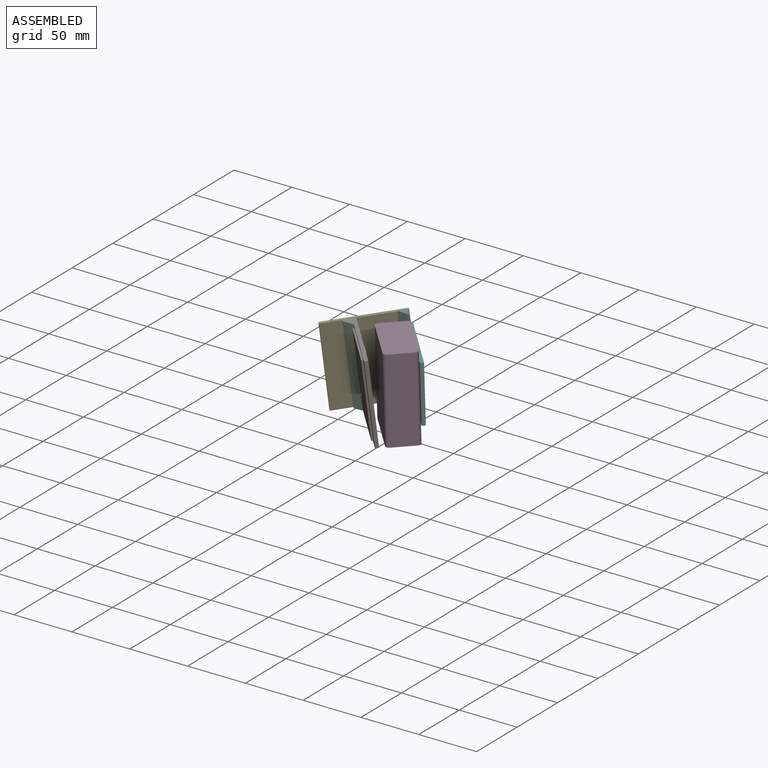
[diagram: assembled view]
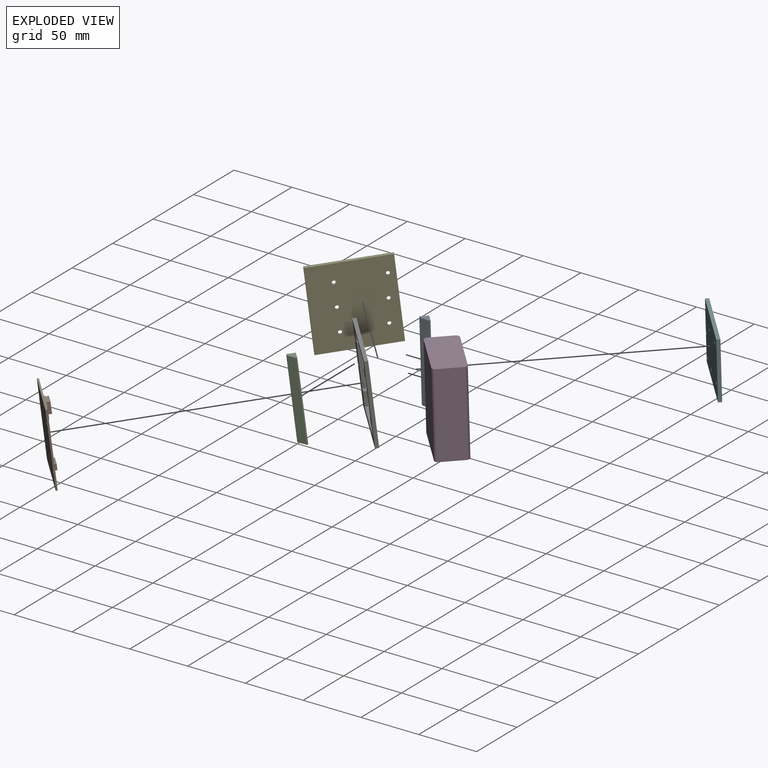
[diagram: exploded view]
GUIDED TOUR — MATED ASSEMBLY (Onshape document 43864482d6a0b5b9baaa438b, AutoMate assembly 43864482d6a0b5b9baaa438b_8aa2dad4bd054c7b0174e1f1_62e0ce11d7da94749cde2463_default)

This assembly has 7 components, labeled P0..P6 below (a component is one placed occurrence of a part; the same part can appear more than once), held together by 5 mates. A mate is a constraint between two components; its type names the relative motion it leaves free:
  FASTENED — locks the two components together rigidly (no relative motion).
Axis/direction vectors are unit vectors and 'through' points are millimeter coordinates, both in the assembly's world frame.

MATES
  1. FASTENED "Fastened 6": P3 <-> P5, direction (0.743, 0.669, 0.029) through (96.84, 160.84, -35.48) mm
  2. FASTENED "Fastened 3": P4 <-> P2, direction (0.670, -0.742, -0.033) through (30.45, 174.09, -55.89) mm
  3. FASTENED "Fastened 2": P6 <-> P2, direction (-0.740, -0.663, -0.116) through (34.80, 171.73, -35.70) mm
  4. FASTENED "Fastened 5": P0 <-> P5, direction (0.743, 0.669, 0.029) through (63.62, 197.52, -30.74) mm
  5. FASTENED "Fastened 1": P6 <-> P1, direction (-0.740, -0.663, -0.116) through (41.43, 164.21, -35.03) mm

ASSEMBLY ORDER
  1. P6 — the base component [order verified]
  2. P1 [order verified]
  3. P2 [order verified]
  4. P3 [order verified]
  5. P0 [order verified]
  6. P5 [order verified]
  7. P4 [order verified]
Order-tag legend:
  [order verified] — this step's position reverses a verified removal order: the component was checked to insert without passing through the ones already placed.

Of the 7 components, 6 carry the full construction recipe — the FeatureScript program that regenerates the part's solid from scratch; the rest are supplied as boundary geometry only.
Each toured component is shown spotlighted twice — in the assembled view, then in the exploded view, where a leader line traces a displaced component back to its assembled socket (saturated green if recipe-attached, orange if geometry-only; every other component desaturated gray) — followed by its recipe or geometry summary and the mates that hold it.
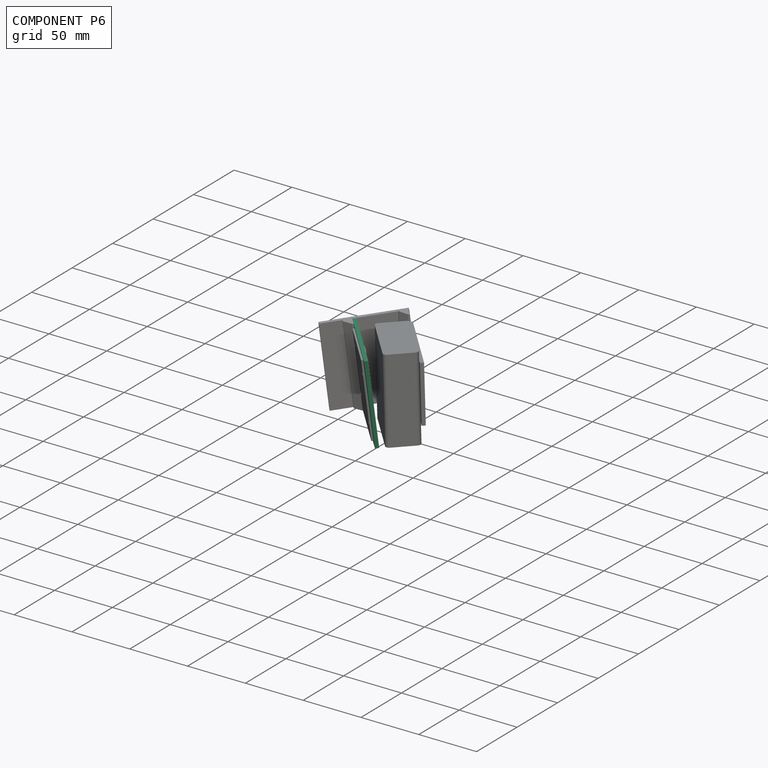
[diagram: component P6 — assembled]
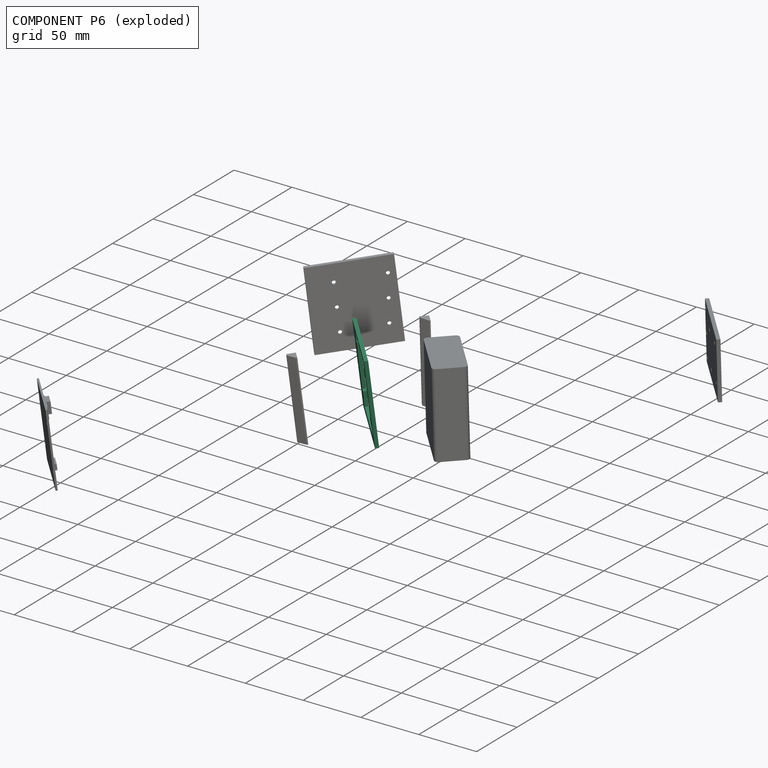
[diagram: component P6 — exploded]
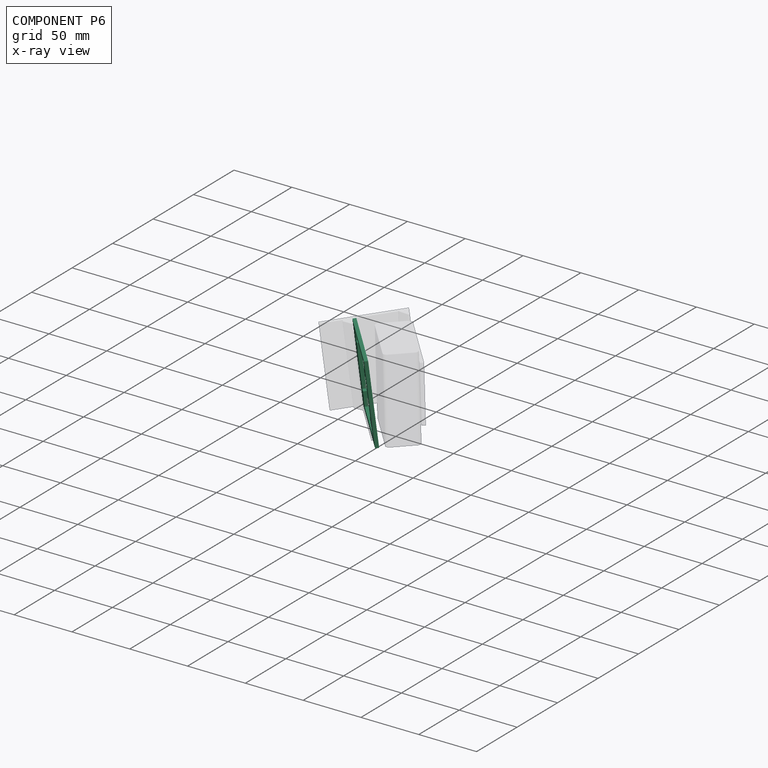
[diagram: component P6 — x-ray view]
COMPONENT P6 — recipe-attached (CADFS 00900890, mesh-verified: the recipe's output STEP matches this component's geometry to below the mesh-comparison resolution (tessellation chordal tolerance ~0.146 mm)).
Held by: FASTENED mate "Fastened 2" to P2; FASTENED mate "Fastened 1" to P1.
Construction recipe (FeatureScript — the CAD program that rebuilds this solid; sketch coordinates are in the units given by the * unit suffixes, e.g. mm):

FeatureScript 1511;
import(path : "onshape/std/geometry.fs", version : "1511.0");
import(path : "onshape/std/common.fs", version : "1511.0");
const mm = millimeter;
const VERTEX = EntityType.VERTEX;
const EDGE = EntityType.EDGE;
const FACE = EntityType.FACE;
const BODY = EntityType.BODY;
function v(x, y){return vector(x, y);}
function OD(order){return orderDisambiguation(order);}
function OSD(set){return originalSetDisambiguation(set);}
function TD(topology){return topologyDisambiguation(topology);}
function TDD(query){return trueDependencyDisambiguation(query);}
function sQuery(a, b, c) {return sketchEntityQuery(a, b, c);}

annotation { "Feature Type Name" : "Feature", "Feature Type Description" : "" }
export const myFeature = defineFeature(function(context is Context, id is Id, definition is map)
    precondition{}
    {
        {
            var Q0;
            Q0=qCreatedBy(makeId("Front.planeOp"),FACE);
            var sketch = newSketch(context, id + "F0", { "sketchPlane" : qUnion([Q0])});
            skLineSegment(sketch, "E0.bottom", {"start": v(-30.47, 26.58) * mm, "end": v(37.53, 26.58) * mm});
            skLineSegment(sketch, "E0.top", {"start": v(-30.47, -43.42) * mm, "end": v(37.53, -43.42) * mm});
            skLineSegment(sketch, "E0.left", {"start": v(-30.47, 26.58) * mm, "end": v(-30.47, -43.42) * mm});
            skLineSegment(sketch, "E0.right", {"start": v(37.53, 26.58) * mm, "end": v(37.53, -43.42) * mm});
            skLineSegment(sketch, "E1", {"start": v(-16.47, 12.58) * mm, "end": v(28.53, 12.58) * mm, "construction": true});
            skLineSegment(sketch, "E2", {"start": v(28.53, 12.58) * mm, "end": v(28.53, -26.42) * mm, "construction": true});
            skLineSegment(sketch, "E3", {"start": v(28.53, -26.42) * mm, "end": v(-16.47, -26.42) * mm, "construction": true});
            skCircle(sketch, "E4", {"center": v(-16.47, 12.58) * mm, "radius": 0.95 * mm});
            skCircle(sketch, "E5", {"center": v(28.53, 12.58) * mm, "radius": 0.95 * mm});
            skCircle(sketch, "E6", {"center": v(28.53, -26.42) * mm, "radius": 0.95 * mm});
            skCircle(sketch, "E7", {"center": v(-16.47, -26.42) * mm, "radius": 0.95 * mm});
            skLineSegment(sketch, "E8", {"start": v(-16.47, 12.58) * mm, "end": v(-16.47, 26.58) * mm, "construction": true});
            skLineSegment(sketch, "E9", {"start": v(-16.47, -26.42) * mm, "end": v(-16.47, -43.42) * mm, "construction": true});
            skLineSegment(sketch, "E10", {"start": v(-30.47, 11.58) * mm, "end": v(-26.47, 11.58) * mm, "construction": true});
            skCircle(sketch, "E11", {"center": v(-26.47, 11.58) * mm, "radius": 1.6 * mm});
            skCircle(sketch, "E12", {"center": v(-26.47, -8.42) * mm, "radius": 1.6 * mm});
            skCircle(sketch, "E13", {"center": v(-26.47, -28.42) * mm, "radius": 1.6 * mm});
            skLineSegment(sketch, "E14", {"start": v(-26.47, 11.58) * mm, "end": v(-26.47, -8.42) * mm, "construction": true});
            skLineSegment(sketch, "E15", {"start": v(-26.47, -28.42) * mm, "end": v(-26.47, -8.42) * mm, "construction": true});
            skLineSegment(sketch, "E16", {"start": v(-26.47, 11.58) * mm, "end": v(-26.47, 26.58) * mm, "construction": true});
            skLineSegment(sketch, "E17.bottom", {"start": v(-17.52, 23.1) * mm, "end": v(29.48, 23.1) * mm});
            skLineSegment(sketch, "E17.top", {"start": v(-17.52, -37.9) * mm, "end": v(29.48, -37.9) * mm});
            skLineSegment(sketch, "E18.bottom", {"start": v(-17.52, 15.56) * mm, "end": v(-13.52, 15.56) * mm});
            skLineSegment(sketch, "E18.top", {"start": v(-17.52, 9.63) * mm, "end": v(-13.52, 9.63) * mm});
            skLineSegment(sketch, "E18.right", {"start": v(-13.52, 15.56) * mm, "end": v(-13.52, 9.63) * mm});
            skLineSegment(sketch, "E19.bottom", {"start": v(-17.52, -23.47) * mm, "end": v(-13.52, -23.47) * mm});
            skLineSegment(sketch, "E19.top", {"start": v(-17.52, -29.34) * mm, "end": v(-13.52, -29.34) * mm});
            skLineSegment(sketch, "E19.right", {"start": v(-13.52, -23.47) * mm, "end": v(-13.52, -29.34) * mm});
            skLineSegment(sketch, "E20.bottom", {"start": v(29.48, -29.37) * mm, "end": v(25.58, -29.37) * mm});
            skLineSegment(sketch, "E20.top", {"start": v(29.48, -23.47) * mm, "end": v(25.58, -23.47) * mm});
            skLineSegment(sketch, "E20.right", {"start": v(25.58, -29.37) * mm, "end": v(25.58, -23.47) * mm});
            skLineSegment(sketch, "E21.bottom", {"start": v(29.48, 15.53) * mm, "end": v(25.58, 15.53) * mm});
            skLineSegment(sketch, "E21.top", {"start": v(29.48, 9.63) * mm, "end": v(25.58, 9.63) * mm});
            skLineSegment(sketch, "E21.right", {"start": v(25.58, 15.53) * mm, "end": v(25.58, 9.63) * mm});
            skLineSegment(sketch, "E22", {"start": v(29.48, -29.37) * mm, "end": v(29.48, -37.9) * mm});
            skLineSegment(sketch, "E23", {"start": v(29.48, -23.47) * mm, "end": v(29.48, 9.63) * mm});
            skLineSegment(sketch, "E24", {"start": v(29.48, 15.53) * mm, "end": v(29.48, 23.1) * mm});
            skLineSegment(sketch, "E25", {"start": v(-17.52, -29.34) * mm, "end": v(-17.52, -37.9) * mm});
            skLineSegment(sketch, "E26", {"start": v(-17.52, -23.47) * mm, "end": v(-17.52, 9.63) * mm});
            skLineSegment(sketch, "E27", {"start": v(-17.52, 23.1) * mm, "end": v(-17.52, 15.56) * mm});
            skSolve(sketch);
        }
        {
            var Q0;
            Q0 = qSketchRegion(id + "F0", true);
            var Q1;
            Q1=makeQuery(id+"F0.imprint","IMPRINT",FACE,{"disambiguationData":[TD([[makeQuery(id+"F0.imprint","IMPRINT",EDGE,{"derivedFrom":sQuery(id+"F0.wireOp",EDGE,"E4")}),-1.0]])]});
            var Q2;
            {var subQ3=sQuery(id+"F0.wireOp",EDGE,"E5");Q2=makeQuery(id+"F0.imprint","IMPRINT",FACE,{"disambiguationData":[TD([[makeQuery(id+"F0.imprint","IMPRINT",EDGE,{"derivedFrom":subQ3}),-1.0]])]});}
            var Q3;
            Q3=makeQuery(id+"F0.imprint","IMPRINT",FACE,{"disambiguationData":[TD([[makeQuery(id+"F0.imprint","IMPRINT",EDGE,{"derivedFrom":sQuery(id+"F0.wireOp",EDGE,"E7")}),-1.0]])]});
            var Q4;
            {var subQ3=sQuery(id+"F0.wireOp",EDGE,"E6");Q4=makeQuery(id+"F0.imprint","IMPRINT",FACE,{"disambiguationData":[TD([[makeQuery(id+"F0.imprint","IMPRINT",EDGE,{"derivedFrom":subQ3}),-1.0]])]});}
            extrude(context, id + "F1", {"entities" : qUnion([Q0, Q1, Q2, Q3, Q4]), "depth" : 3 * mm, "offsetDistance" : 25 * mm});
        }
    });
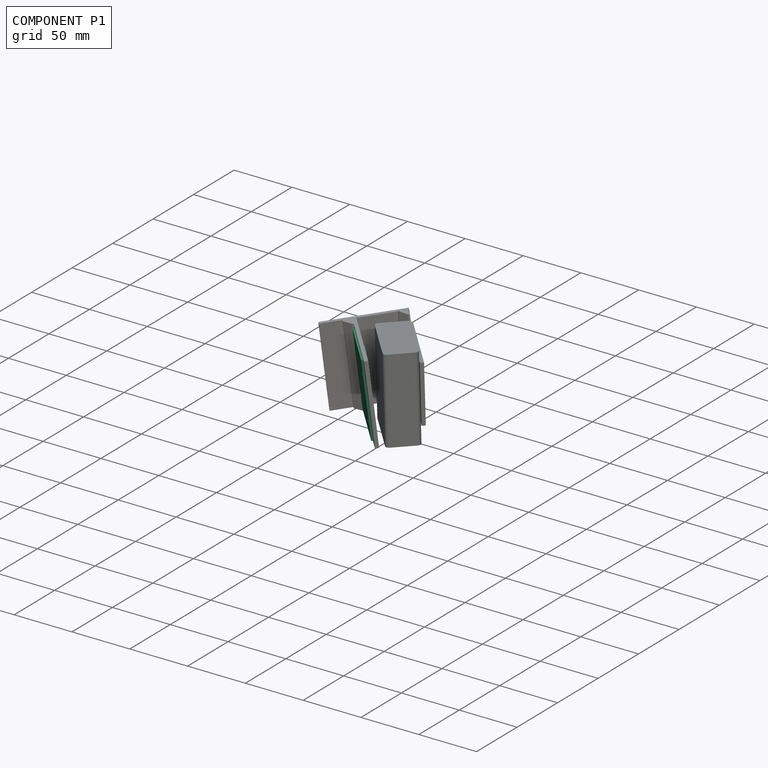
[diagram: component P1 — assembled]
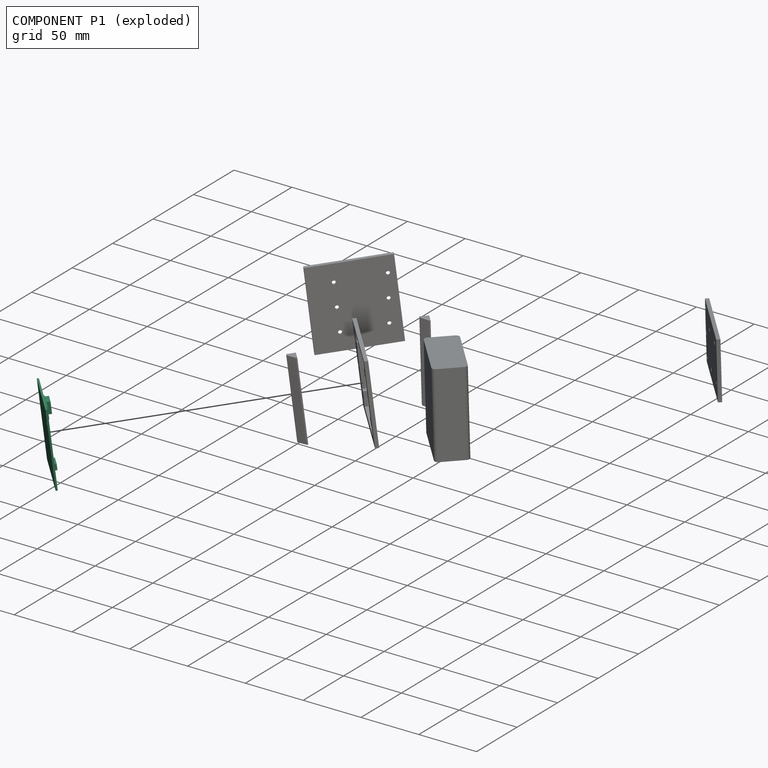
[diagram: component P1 — exploded]
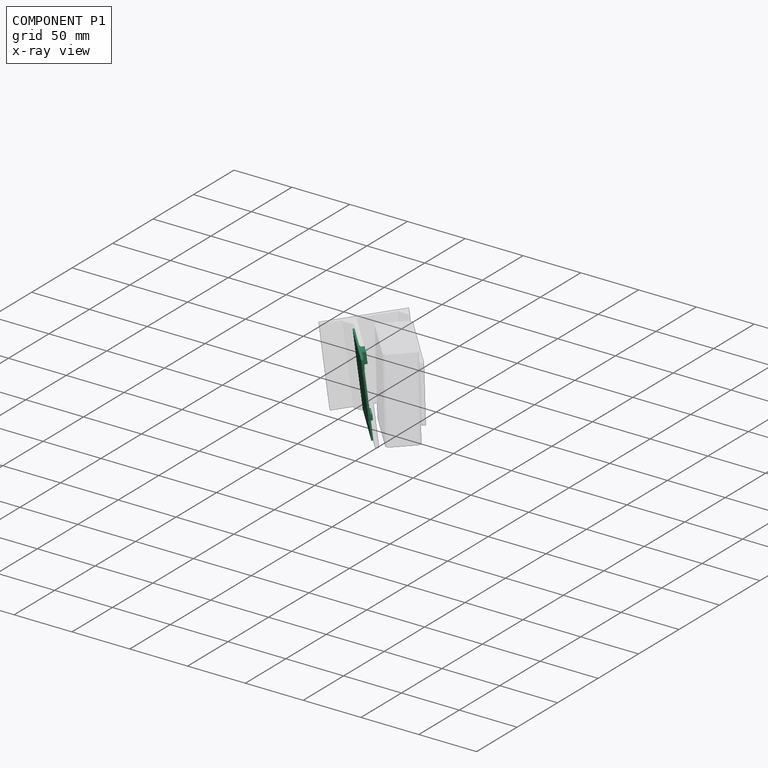
[diagram: component P1 — x-ray view]
COMPONENT P1 — recipe-attached (CADFS 00900891, mesh-verified: the recipe's output STEP matches this component's geometry to below the mesh-comparison resolution (tessellation chordal tolerance ~0.123 mm)).
Held by: FASTENED mate "Fastened 1" to P6.
Construction recipe (FeatureScript — the CAD program that rebuilds this solid; sketch coordinates are in the units given by the * unit suffixes, e.g. mm):

FeatureScript 1511;
import(path : "onshape/std/geometry.fs", version : "1511.0");
import(path : "onshape/std/common.fs", version : "1511.0");
const mm = millimeter;
const VERTEX = EntityType.VERTEX;
const EDGE = EntityType.EDGE;
const FACE = EntityType.FACE;
const BODY = EntityType.BODY;
function v(x, y){return vector(x, y);}
function OD(order){return orderDisambiguation(order);}
function OSD(set){return originalSetDisambiguation(set);}
function TD(topology){return topologyDisambiguation(topology);}
function TDD(query){return trueDependencyDisambiguation(query);}
function sQuery(a, b, c) {return sketchEntityQuery(a, b, c);}

annotation { "Feature Type Name" : "Feature", "Feature Type Description" : "" }
export const myFeature = defineFeature(function(context is Context, id is Id, definition is map)
    precondition{}
    {
        {
            var Q0;
            Q0=qCreatedBy(makeId("Top.planeOp"),FACE);
            var sketch = newSketch(context, id + "F0", { "sketchPlane" : qUnion([Q0])});
            skLineSegment(sketch, "E0.bottom", {"start": v(-23.74, -20.67) * mm, "end": v(26.26, -20.67) * mm});
            skLineSegment(sketch, "E0.top", {"start": v(-23.74, 44.33) * mm, "end": v(26.26, 44.33) * mm});
            skLineSegment(sketch, "E0.left", {"start": v(-23.74, -20.67) * mm, "end": v(-23.74, 44.33) * mm});
            skLineSegment(sketch, "E0.right", {"start": v(26.26, -20.67) * mm, "end": v(26.26, 44.33) * mm});
            skLineSegment(sketch, "E1", {"start": v(23.76, 44.33) * mm, "end": v(23.76, 32.33) * mm, "construction": true});
            skCircle(sketch, "E2", {"center": v(23.76, 32.33) * mm, "radius": 1.5 * mm});
            skLineSegment(sketch, "E3", {"start": v(23.76, 32.33) * mm, "end": v(26.26, 32.33) * mm, "construction": true});
            skLineSegment(sketch, "E4.MirrorCS", {"start": v(-21.24, 44.33) * mm, "end": v(-21.24, 32.33) * mm, "construction": true});
            skCircle(sketch, "E5.MirrorC", {"center": v(-21.24, 32.33) * mm, "radius": 1.5 * mm});
            skLineSegment(sketch, "E6.MirrorCS", {"start": v(-21.24, 32.33) * mm, "end": v(-23.74, 32.33) * mm, "construction": true});
            skLineSegment(sketch, "E7", {"start": v(23.76, -20.67) * mm, "end": v(23.76, -6.67) * mm, "construction": true});
            skLineSegment(sketch, "E8", {"start": v(23.76, -6.67) * mm, "end": v(26.26, -6.67) * mm, "construction": true});
            skCircle(sketch, "E9", {"center": v(23.76, -6.67) * mm, "radius": 1.5 * mm});
            skLineSegment(sketch, "E10", {"start": v(1.26, -20.67) * mm, "end": v(1.26, 44.33) * mm, "construction": true});
            skLineSegment(sketch, "E11.MirrorCS", {"start": v(-21.24, -6.67) * mm, "end": v(-23.74, -6.67) * mm, "construction": true});
            skCircle(sketch, "E12.MirrorC", {"center": v(-21.24, -6.67) * mm, "radius": 1.5 * mm});
            skLineSegment(sketch, "E13.MirrorCS", {"start": v(-21.24, -20.67) * mm, "end": v(-21.24, -6.67) * mm, "construction": true});
            skSolve(sketch);
        }
        {
            var Q0;
            Q0=makeQuery(id+"F0.imprint","IMPRINT",FACE,{"disambiguationData":[TD([[makeQuery(id+"F0.imprint","IMPRINT",EDGE,{"derivedFrom":sQuery(id+"F0.wireOp",EDGE,"E0.bottom")}),1.0]])]});
            extrude(context, id + "F1", {"entities" : qUnion([Q0]), "depth" : 1.5 * mm, "offsetDistance" : 25 * mm});
        }
        {
            var Q0;
            Q0=makeQuery(id+"F1.opExtrude","CAP_FACE",FACE,{"disambiguationData":[OSD([sQuery(id+"F0.wireOp",EDGE,"E0.bottom"),sQuery(id+"F0.wireOp",EDGE,"E0.top"),sQuery(id+"F0.wireOp",EDGE,"E0.left"),sQuery(id+"F0.wireOp",EDGE,"E0.right"),sQuery(id+"F0.wireOp",EDGE,"E2"),sQuery(id+"F0.wireOp",EDGE,"E5.MirrorC"),sQuery(id+"F0.wireOp",EDGE,"E9"),sQuery(id+"F0.wireOp",EDGE,"E12.MirrorC")])],"isStart":false});
            var sketch = newSketch(context, id + "F2", { "sketchPlane" : qUnion([Q0])});
            skLineSegment(sketch, "E14.bottom", {"start": v(20.26, 33.33) * mm, "end": v(1.26, 33.33) * mm});
            skLineSegment(sketch, "E14.top", {"start": v(20.26, 23.33) * mm, "end": v(1.26, 23.33) * mm});
            skLineSegment(sketch, "E14.left", {"start": v(20.26, 33.33) * mm, "end": v(20.26, 23.33) * mm});
            skLineSegment(sketch, "E14.right", {"start": v(1.26, 33.33) * mm, "end": v(1.26, 23.33) * mm});
            skLineSegment(sketch, "E15.bottom", {"start": v(9.26, 33.33) * mm, "end": v(18.26, 33.33) * mm});
            skLineSegment(sketch, "E15.top", {"start": v(9.26, 23.33) * mm, "end": v(18.26, 23.33) * mm});
            skLineSegment(sketch, "E15.left", {"start": v(9.26, 33.33) * mm, "end": v(9.26, 23.33) * mm});
            skLineSegment(sketch, "E15.right", {"start": v(18.26, 33.33) * mm, "end": v(18.26, 23.33) * mm});
            skLineSegment(sketch, "E16.bottom", {"start": v(-17.74, -2.67) * mm, "end": v(-7.74, -2.67) * mm});
            skLineSegment(sketch, "E16.top", {"start": v(-17.74, -7.67) * mm, "end": v(-7.74, -7.67) * mm});
            skLineSegment(sketch, "E16.left", {"start": v(-17.74, -2.67) * mm, "end": v(-17.74, -7.67) * mm});
            skLineSegment(sketch, "E16.right", {"start": v(-7.74, -2.67) * mm, "end": v(-7.74, -7.67) * mm});
            skSolve(sketch);
        }
        {
            var Q0;
            Q0=makeQuery(id+"F2.imprint","IMPRINT",FACE,{"disambiguationData":[TD([[makeQuery(id+"F2.imprint","IMPRINT",EDGE,{"derivedFrom":sQuery(id+"F2.wireOp",EDGE,"E16.bottom")}),-1.0]])]});
            extrude(context, id + "F3", {"entities" : qUnion([Q0]), "operationType" : NewBodyOperationType.ADD, "depth" : 2 * mm, "offsetDistance" : 25 * mm});
        }
        {
            var Q0;
            {var subQ2=sQuery(id+"F2.wireOp",EDGE,"E15.left");Q0=makeQuery(id+"F2.imprint","IMPRINT",FACE,{"disambiguationData":[TD([[makeQuery(id+"F2.imprint","IMPRINT",EDGE,{"derivedFrom":subQ2}),1.0]])]});}
            extrude(context, id + "F4", {"entities" : qUnion([Q0]), "operationType" : NewBodyOperationType.ADD, "depth" : 5 * mm, "offsetDistance" : 25 * mm});
        }
        {
            var Q0;
            {var subQ2=sQuery(id+"F2.wireOp",EDGE,"E14.left");Q0=makeQuery(id+"F2.imprint","IMPRINT",FACE,{"disambiguationData":[TD([[makeQuery(id+"F2.imprint","IMPRINT",EDGE,{"derivedFrom":subQ2}),-1.0]])]});}
            var Q1;
            {var subQ0=sQuery(id+"F2.wireOp",EDGE,"E14.right");Q1=makeQuery(id+"F2.imprint","IMPRINT",FACE,{"disambiguationData":[TD([[makeQuery(id+"F2.imprint","IMPRINT",EDGE,{"derivedFrom":subQ0}),1.0]])]});}
            extrude(context, id + "F5", {"entities" : qUnion([Q0, Q1]), "operationType" : NewBodyOperationType.ADD, "depth" : 2 * mm, "offsetDistance" : 25 * mm});
        }
    });
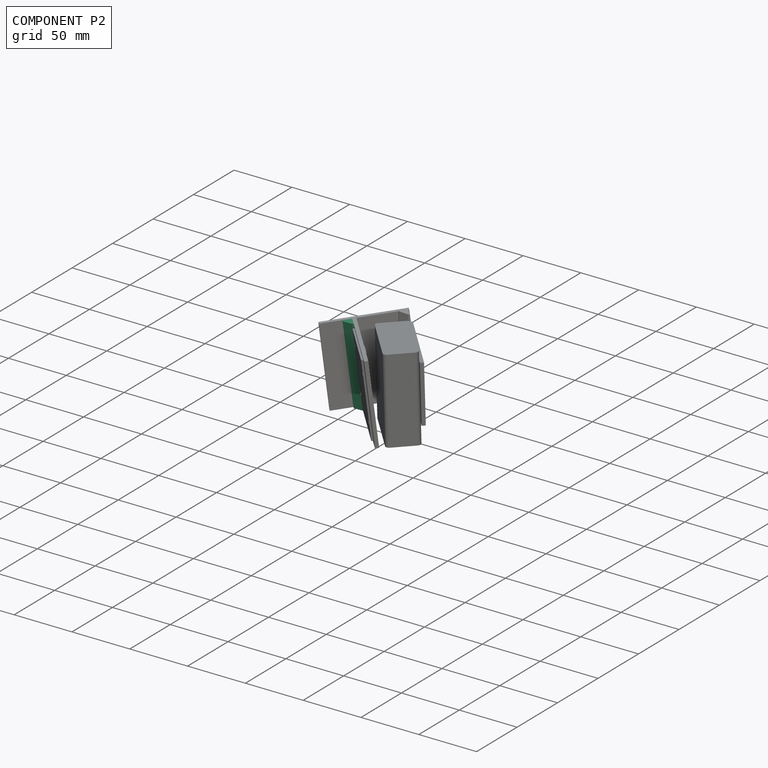
[diagram: component P2 — assembled]
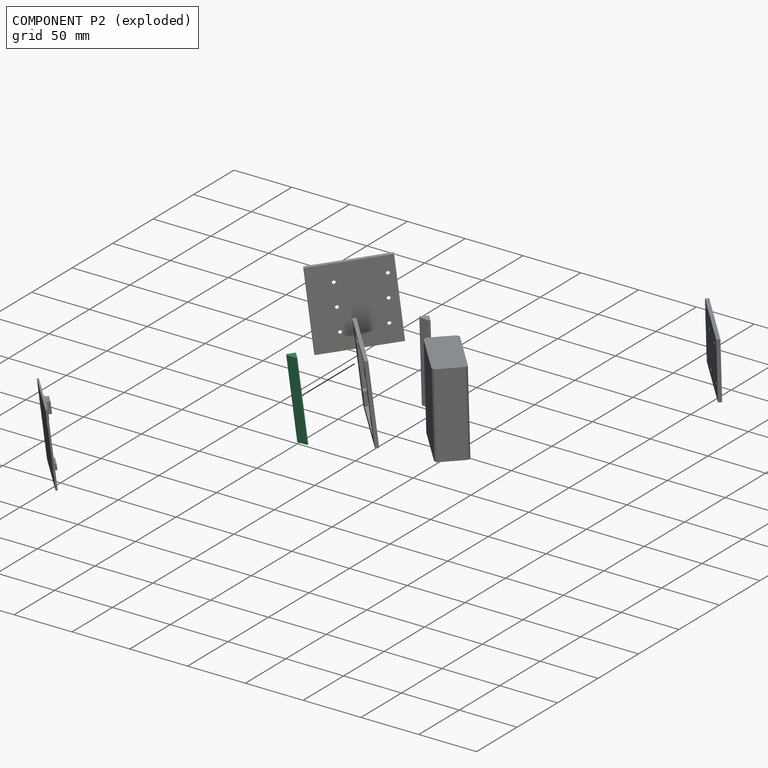
[diagram: component P2 — exploded]
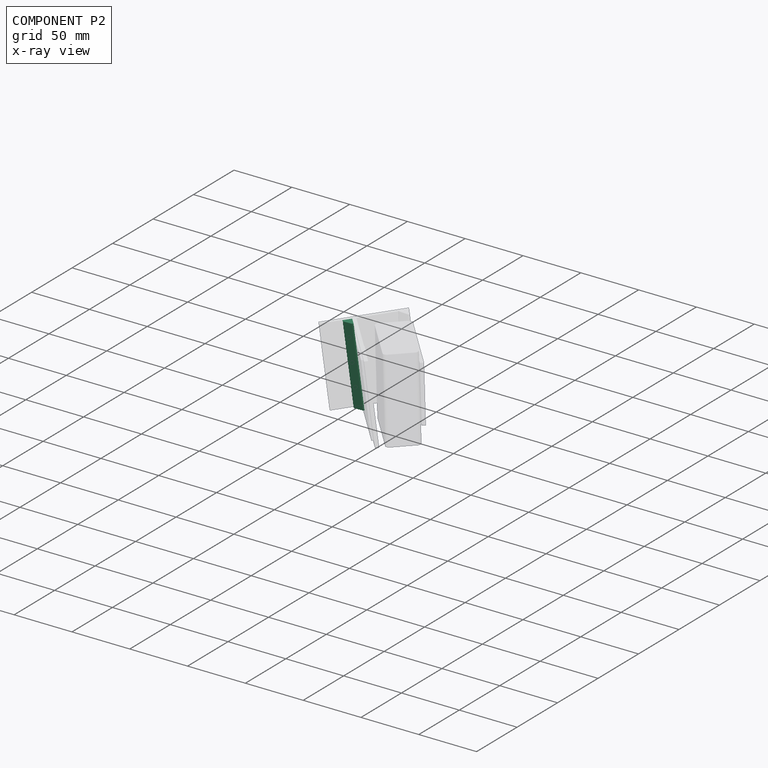
[diagram: component P2 — x-ray view]
COMPONENT P2 — same part as P0 (CADFS 00846134); its construction recipe is shown at P0.
Held by: FASTENED mate "Fastened 3" to P4; FASTENED mate "Fastened 2" to P6.
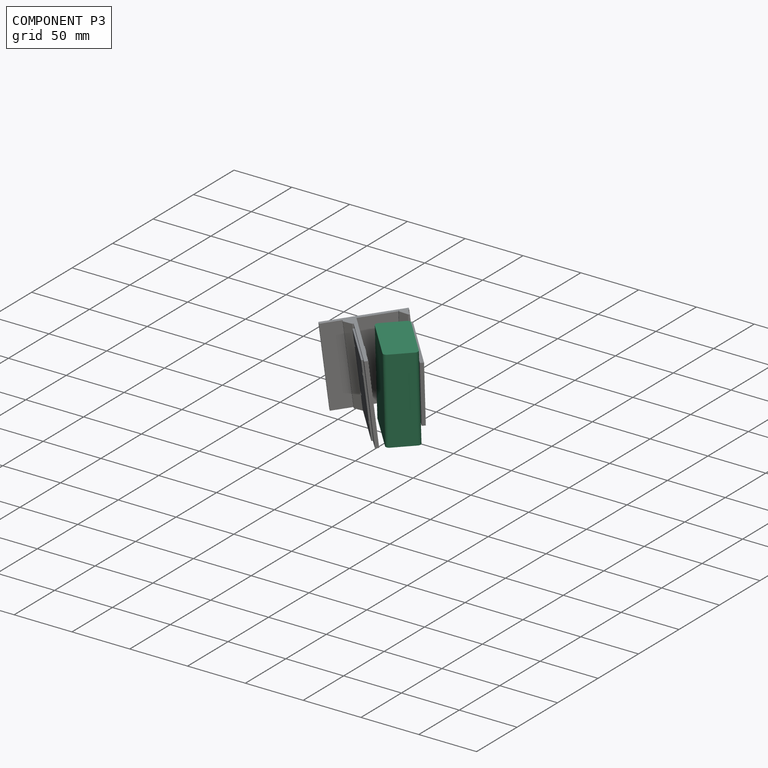
[diagram: component P3 — assembled]
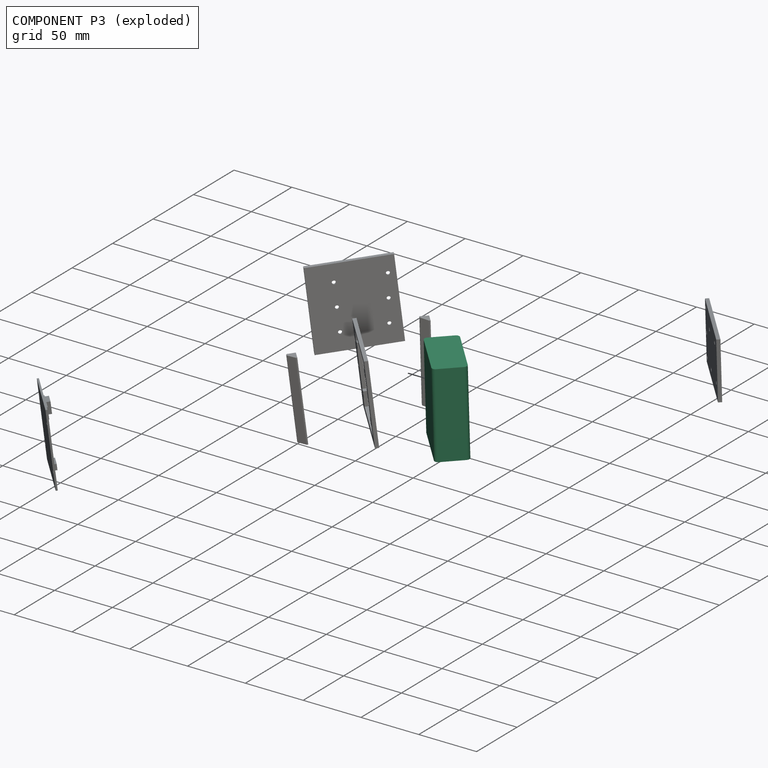
[diagram: component P3 — exploded]
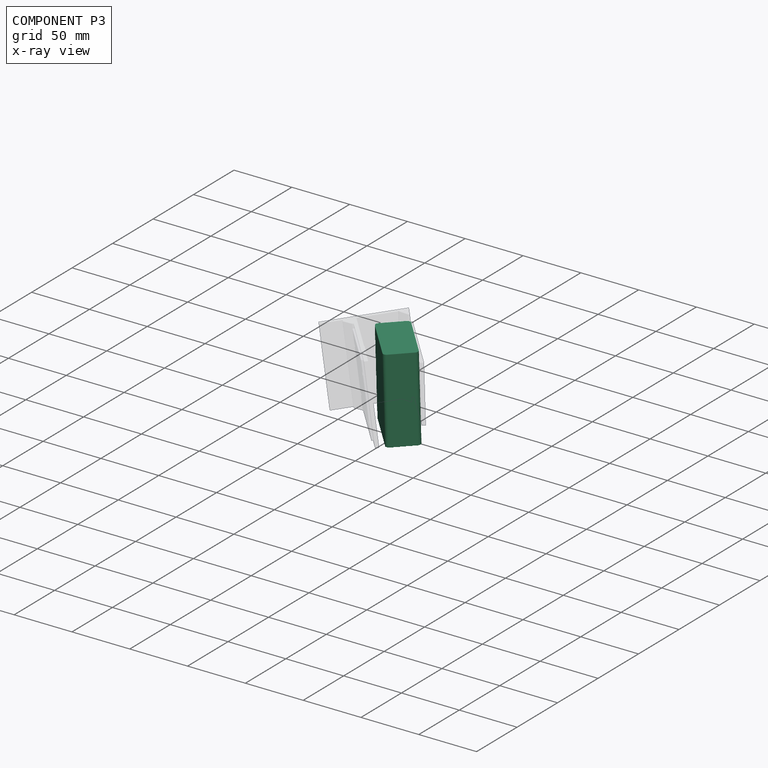
[diagram: component P3 — x-ray view]
COMPONENT P3 — recipe-attached (CADFS 00846248, mesh-verified: the recipe's output STEP matches this component's geometry to below the mesh-comparison resolution (tessellation chordal tolerance ~0.14 mm)).
Held by: FASTENED mate "Fastened 6" to P5.
Construction recipe (FeatureScript — the CAD program that rebuilds this solid; sketch coordinates are in the units given by the * unit suffixes, e.g. mm):

FeatureScript 1511;
import(path : "onshape/std/geometry.fs", version : "1511.0");
import(path : "onshape/std/common.fs", version : "1511.0");
const mm = millimeter;
const VERTEX = EntityType.VERTEX;
const EDGE = EntityType.EDGE;
const FACE = EntityType.FACE;
const BODY = EntityType.BODY;
function v(x, y){return vector(x, y);}
function OD(order){return orderDisambiguation(order);}
function OSD(set){return originalSetDisambiguation(set);}
function TD(topology){return topologyDisambiguation(topology);}
function TDD(query){return trueDependencyDisambiguation(query);}
function sQuery(a, b, c) {return sketchEntityQuery(a, b, c);}

annotation { "Feature Type Name" : "Feature", "Feature Type Description" : "" }
export const myFeature = defineFeature(function(context is Context, id is Id, definition is map)
    precondition{}
    {
        {
            var Q0;
            Q0=qCreatedBy(makeId("Top.planeOp"),FACE);
            var sketch = newSketch(context, id + "F0", { "sketchPlane" : qUnion([Q0])});
            skLineSegment(sketch, "E0.bottom", {"start": v(-22.9, 37.62) * mm, "end": v(27.1, 37.62) * mm});
            skLineSegment(sketch, "E0.top", {"start": v(-22.9, -36.38) * mm, "end": v(27.1, -36.38) * mm});
            skLineSegment(sketch, "E0.left", {"start": v(-22.9, 37.62) * mm, "end": v(-22.9, -36.38) * mm});
            skLineSegment(sketch, "E0.right", {"start": v(27.1, 37.62) * mm, "end": v(27.1, -36.38) * mm});
            skSolve(sketch);
        }
        {
            var Q0;
            Q0 = qSketchRegion(id + "F0", true);
            extrude(context, id + "F1", {"entities" : qUnion([Q0]), "depth" : 26 * mm, "offsetDistance" : 25 * mm});
        }
        {
            var Q0;
            Q0=makeQuery(id+"F1.opExtrude","SWEPT_FACE",FACE,{"disambiguationData":[OSD([sQuery(id+"F0.wireOp",EDGE,"E0.bottom")])]});
            var sketch = newSketch(context, id + "F2", { "sketchPlane" : qUnion([Q0])});
            skLineSegment(sketch, "E1.bottom", {"start": v(-22.05, 20.89) * mm, "end": v(17.95, 20.89) * mm});
            skLineSegment(sketch, "E1.top", {"start": v(-22.05, 5.89) * mm, "end": v(17.95, 5.89) * mm});
            skLineSegment(sketch, "E1.left", {"start": v(-22.05, 20.89) * mm, "end": v(-22.05, 5.89) * mm});
            skLineSegment(sketch, "E1.right", {"start": v(17.95, 20.89) * mm, "end": v(17.95, 5.89) * mm});
            skSolve(sketch);
        }
        {
            var Q0;
            Q0 = qSketchRegion(id + "F2", true);
            extrude(context, id + "F3", {"entities" : qUnion([Q0]), "operationType" : NewBodyOperationType.REMOVE, "oppositeDirection" : true, "depth" : 4.5 * mm, "offsetDistance" : 25 * mm});
        }
        {
            var Q0;
            Q0=makeQuery(id+"F1.opExtrude","CAP_FACE",FACE,{"disambiguationData":[OSD([sQuery(id+"F0.wireOp",EDGE,"E0.bottom"),sQuery(id+"F0.wireOp",EDGE,"E0.top"),sQuery(id+"F0.wireOp",EDGE,"E0.left"),sQuery(id+"F0.wireOp",EDGE,"E0.right")])],"isStart":true});
            var sketch = newSketch(context, id + "F4", { "sketchPlane" : qUnion([Q0])});
            skLineSegment(sketch, "E2", {"start": v(18.1, -37.62) * mm, "end": v(18.1, -9.62) * mm});
            skLineSegment(sketch, "E3", {"start": v(18.1, -9.62) * mm, "end": v(18.1, 20.38) * mm});
            skLineSegment(sketch, "E4", {"start": v(18.1, 20.38) * mm, "end": v(-12.9, 20.38) * mm});
            skCircle(sketch, "E5", {"center": v(18.1, 20.38) * mm, "radius": 1.5 * mm});
            skCircle(sketch, "E6", {"center": v(-12.9, 20.38) * mm, "radius": 1.5 * mm});
            skCircle(sketch, "E7", {"center": v(18.1, -9.62) * mm, "radius": 1.5 * mm});
            skCircle(sketch, "E8", {"center": v(18.1, -9.62) * mm, "radius": 2.25 * mm});
            skCircle(sketch, "E9", {"center": v(18.1, 20.38) * mm, "radius": 2.25 * mm});
            skCircle(sketch, "E10", {"center": v(-12.9, 20.38) * mm, "radius": 2.25 * mm});
            skLineSegment(sketch, "E11", {"start": v(-12.9, 20.38) * mm, "end": v(-12.9, 8.38) * mm});
            skLineSegment(sketch, "E12.bottom", {"start": v(-12.9, 8.38) * mm, "end": v(-12.4, 8.38) * mm});
            skLineSegment(sketch, "E12.top", {"start": v(-12.9, 6.38) * mm, "end": v(-12.4, 6.38) * mm});
            skLineSegment(sketch, "E12.left", {"start": v(-12.9, 8.38) * mm, "end": v(-12.9, 6.38) * mm});
            skLineSegment(sketch, "E12.right", {"start": v(-12.4, 8.38) * mm, "end": v(-12.4, 6.38) * mm});
            skSolve(sketch);
        }
        {
            var Q0;
            Q0=makeQuery(id+"F1.opExtrude","CAP_EDGE",EDGE,{"disambiguationData":[OSD([sQuery(id+"F0.wireOp",EDGE,"E0.right")])],"isStart":true});
            var Q1;
            Q1=makeQuery(id+"F1.opExtrude","CAP_EDGE",EDGE,{"disambiguationData":[OSD([sQuery(id+"F0.wireOp",EDGE,"E0.right")])],"isStart":false});
            var Q2;
            Q2=makeQuery(id+"F1.opExtrude","CAP_EDGE",EDGE,{"disambiguationData":[OSD([sQuery(id+"F0.wireOp",EDGE,"E0.left")])],"isStart":true});
            var Q3;
            Q3=makeQuery(id+"F1.opExtrude","CAP_EDGE",EDGE,{"disambiguationData":[OSD([sQuery(id+"F0.wireOp",EDGE,"E0.left")])],"isStart":false});
            fillet(context, id + "F5", {"entities" : qUnion([Q0, Q1, Q2, Q3]), "radius" : 3 * mm, "tangentPropagation" : true, "allowEdgeOverflow" : false});
        }
        {
            var Q0;
            {var subQ0=sQuery(id+"F4.wireOp",EDGE,"E4");var subQ1=sQuery(id+"F4.wireOp",EDGE,"E3");var subQ2=makeQuery(id+"F4.imprint","INTERSECT",VERTEX,{"derivedFrom":[subQ1,subQ0]});Q0=makeQuery(id+"F4.imprint","IMPRINT",FACE,{"disambiguationData":[TD([[makeQuery(id+"F4.imprint","IMPRINT",EDGE,{"disambiguationData":[TD([[subQ2,1.0]])],"derivedFrom":subQ1}),-1.0]])]});}
            var Q1;
            {var subQ0=sQuery(id+"F4.wireOp",EDGE,"E4");var subQ1=sQuery(id+"F4.wireOp",EDGE,"E3");var subQ2=makeQuery(id+"F4.imprint","INTERSECT",VERTEX,{"derivedFrom":[subQ1,subQ0]});Q1=makeQuery(id+"F4.imprint","IMPRINT",FACE,{"disambiguationData":[TD([[makeQuery(id+"F4.imprint","IMPRINT",EDGE,{"disambiguationData":[TD([[subQ2,1.0]])],"derivedFrom":subQ1}),1.0]])]});}
            var Q2;
            Q2=makeQuery(id+"F4.imprint","IMPRINT",FACE,{"disambiguationData":[TD([[makeQuery(id+"F4.imprint","IMPRINT",EDGE,{"derivedFrom":sQuery(id+"F4.wireOp",EDGE,"E6")}),1.0]])]});
            var Q3;
            {var subQ0=sQuery(id+"F4.wireOp",EDGE,"E3");var subQ1=sQuery(id+"F4.wireOp",EDGE,"E2");var subQ2=makeQuery(id+"F4.imprint","INTERSECT",VERTEX,{"derivedFrom":[subQ1,subQ0]});Q3=makeQuery(id+"F4.imprint","IMPRINT",FACE,{"disambiguationData":[TD([[makeQuery(id+"F4.imprint","IMPRINT",EDGE,{"disambiguationData":[TD([[subQ2,1.0]])],"derivedFrom":subQ1}),1.0]])]});}
            var Q4;
            {var subQ0=sQuery(id+"F4.wireOp",EDGE,"E3");var subQ1=sQuery(id+"F4.wireOp",EDGE,"E2");var subQ2=makeQuery(id+"F4.imprint","INTERSECT",VERTEX,{"derivedFrom":[subQ1,subQ0]});Q4=makeQuery(id+"F4.imprint","IMPRINT",FACE,{"disambiguationData":[TD([[makeQuery(id+"F4.imprint","IMPRINT",EDGE,{"disambiguationData":[TD([[subQ2,1.0]])],"derivedFrom":subQ1}),-1.0]])]});}
            extrude(context, id + "F6", {"entities" : qUnion([Q0, Q1, Q2, Q3, Q4]), "operationType" : NewBodyOperationType.REMOVE, "oppositeDirection" : true, "depth" : 4 * mm, "offsetDistance" : 25 * mm});
        }
        {
            var Q0;
            Q0=makeQuery(id+"F4.imprint","IMPRINT",FACE,{"disambiguationData":[TD([[makeQuery(id+"F4.imprint","IMPRINT",EDGE,{"derivedFrom":sQuery(id+"F4.wireOp",EDGE,"E12.bottom")}),-1.0]])]});
            extrude(context, id + "F7", {"entities" : qUnion([Q0]), "operationType" : NewBodyOperationType.REMOVE, "oppositeDirection" : true, "depth" : 0.2 * mm, "offsetDistance" : 25 * mm});
        }
    });
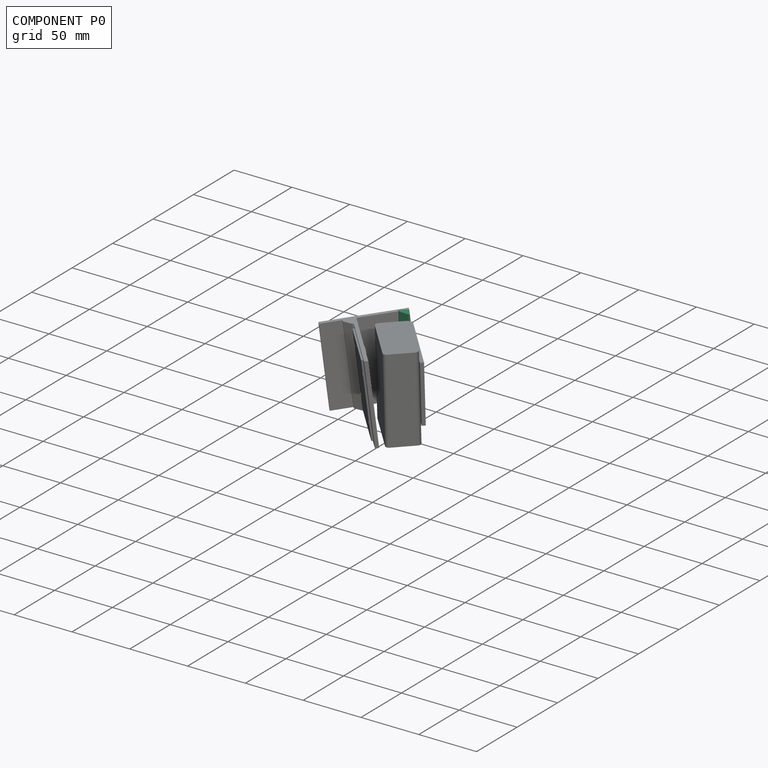
[diagram: component P0 — assembled]
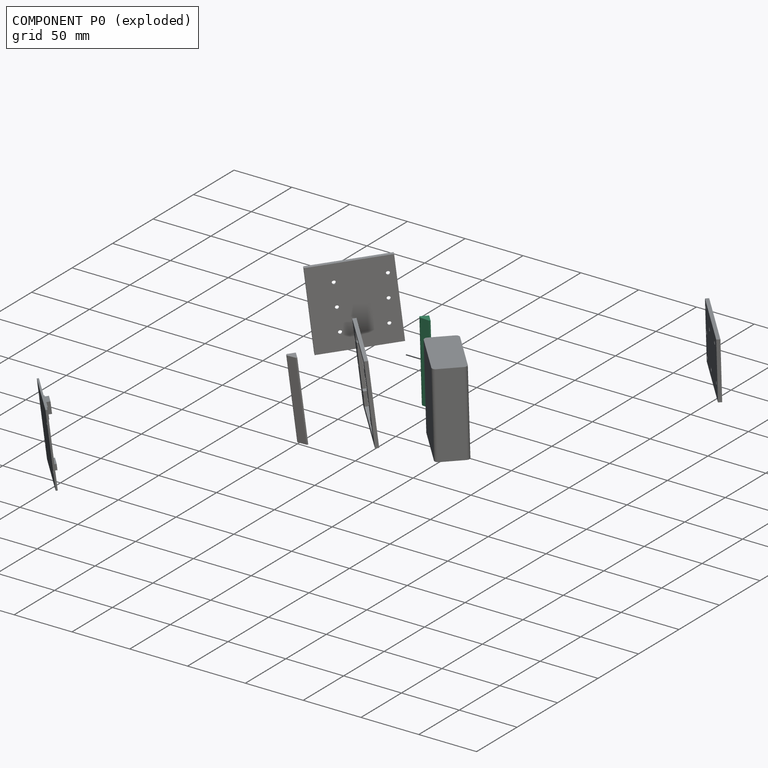
[diagram: component P0 — exploded]
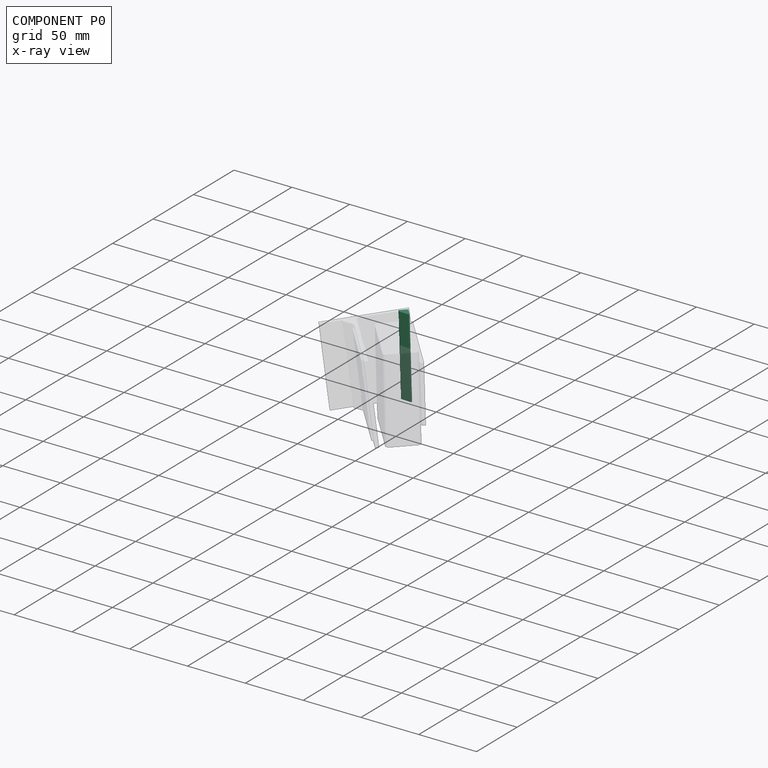
[diagram: component P0 — x-ray view]
COMPONENT P0 — recipe-attached (CADFS 00846134, mesh-verified: the recipe's output STEP matches this component's geometry to below the mesh-comparison resolution (tessellation chordal tolerance ~0.106 mm)).
Held by: FASTENED mate "Fastened 5" to P5.
Construction recipe (FeatureScript — the CAD program that rebuilds this solid; sketch coordinates are in the units given by the * unit suffixes, e.g. mm):

FeatureScript 1540;
import(path : "onshape/std/geometry.fs", version : "1540.0");
import(path : "onshape/std/common.fs", version : "1540.0");
const mm = millimeter;
const VERTEX = EntityType.VERTEX;
const EDGE = EntityType.EDGE;
const FACE = EntityType.FACE;
const BODY = EntityType.BODY;
function v(x, y){return vector(x, y);}
function OD(order){return orderDisambiguation(order);}
function OSD(set){return originalSetDisambiguation(set);}
function TD(topology){return topologyDisambiguation(topology);}
function TDD(query){return trueDependencyDisambiguation(query);}
function sQuery(a, b, c) {return sketchEntityQuery(a, b, c);}

annotation { "Feature Type Name" : "Feature", "Feature Type Description" : "" }
export const myFeature = defineFeature(function(context is Context, id is Id, definition is map)
    precondition{}
    {
        {
            var Q0;
            Q0=qCreatedBy(makeId("Top.planeOp"),FACE);
            var sketch = newSketch(context, id + "F0", { "sketchPlane" : qUnion([Q0])});
            skLineSegment(sketch, "E0.bottom", {"start": v(-14.75, 31.83) * mm, "end": v(-7.75, 31.83) * mm});
            skLineSegment(sketch, "E0.top", {"start": v(-14.75, -38.17) * mm, "end": v(-7.75, -38.17) * mm});
            skLineSegment(sketch, "E0.left", {"start": v(-14.75, 31.83) * mm, "end": v(-14.75, -38.17) * mm});
            skLineSegment(sketch, "E0.right", {"start": v(-7.75, 31.83) * mm, "end": v(-7.75, -38.17) * mm});
            skSolve(sketch);
        }
        {
            var Q0;
            Q0 = qSketchRegion(id + "F0", true);
            extrude(context, id + "F1", {"entities" : qUnion([Q0]), "depth" : 8 * mm, "offsetDistance" : 25 * mm});
        }
        {
            var Q0;
            Q0=makeQuery(id+"F1.opExtrude","CAP_EDGE",EDGE,{"disambiguationData":[OSD([sQuery(id+"F0.wireOp",EDGE,"E0.left")])],"isStart":false});
            chamfer(context, id + "F2", {"entities" : qUnion([Q0]), "width" : 6 * mm, "tangentPropagation" : true});
        }
        {
            var Q0;
            Q0=makeQuery(id+"F1.opExtrude","SWEPT_FACE",FACE,{"disambiguationData":[OSD([sQuery(id+"F0.wireOp",EDGE,"E0.right")])]});
            var sketch = newSketch(context, id + "F3", { "sketchPlane" : qUnion([Q0])});
            skLineSegment(sketch, "E1", {"start": v(-38.17, 0) * mm, "end": v(-23.17, 0) * mm});
            skLineSegment(sketch, "E2", {"start": v(-23.17, 0) * mm, "end": v(-23.17, 4) * mm});
            skLineSegment(sketch, "E3", {"start": v(31.83, 0) * mm, "end": v(16.83, 0) * mm});
            skLineSegment(sketch, "E4", {"start": v(16.83, 0) * mm, "end": v(16.83, 4) * mm});
            skLineSegment(sketch, "E5", {"start": v(16.83, 0) * mm, "end": v(-3.17, 0) * mm});
            skCircle(sketch, "E6", {"center": v(-23.17, 4) * mm, "radius": 1.25 * mm});
            skCircle(sketch, "E7", {"center": v(-3.17, 4) * mm, "radius": 1.25 * mm});
            skCircle(sketch, "E8", {"center": v(16.83, 4) * mm, "radius": 1.25 * mm});
            skSolve(sketch);
        }
        {
            var Q0;
            Q0 = qSketchRegion(id + "F3", true);
            extrude(context, id + "F4", {"entities" : qUnion([Q0]), "operationType" : NewBodyOperationType.REMOVE, "oppositeDirection" : true, "depth" : 2.7 * mm, "offsetDistance" : 25 * mm});
        }
        {
            var Q0;
            Q0=makeQuery(id+"F1.opExtrude","CAP_FACE",FACE,{"disambiguationData":[OSD([sQuery(id+"F0.wireOp",EDGE,"E0.bottom"),sQuery(id+"F0.wireOp",EDGE,"E0.top"),sQuery(id+"F0.wireOp",EDGE,"E0.left"),sQuery(id+"F0.wireOp",EDGE,"E0.right")])],"isStart":true});
            var sketch = newSketch(context, id + "F5", { "sketchPlane" : qUnion([Q0])});
            skLineSegment(sketch, "E9", {"start": v(-7.75, -31.83) * mm, "end": v(-7.75, -16.83) * mm});
            skLineSegment(sketch, "E10", {"start": v(-7.75, -16.83) * mm, "end": v(-11.75, -16.83) * mm});
            skLineSegment(sketch, "E11", {"start": v(-7.75, 38.17) * mm, "end": v(-7.75, 23.17) * mm});
            skLineSegment(sketch, "E12", {"start": v(-7.75, 23.17) * mm, "end": v(-11.75, 23.17) * mm});
            skLineSegment(sketch, "E13", {"start": v(-7.75, 23.17) * mm, "end": v(-7.75, 3.17) * mm});
            skLineSegment(sketch, "E14", {"start": v(-7.75, 3.17) * mm, "end": v(-11.75, 3.17) * mm});
            skCircle(sketch, "E15", {"center": v(-11.75, -16.83) * mm, "radius": 1.25 * mm});
            skCircle(sketch, "E16", {"center": v(-11.75, 3.17) * mm, "radius": 1.25 * mm});
            skCircle(sketch, "E17", {"center": v(-11.75, 23.17) * mm, "radius": 1.25 * mm});
            skLineSegment(sketch, "E18", {"start": v(-11.75, -16.83) * mm, "end": v(-11.75, -11.83) * mm, "construction": true});
            skLineSegment(sketch, "E19.bottom", {"start": v(-11.75, -11.83) * mm, "end": v(-11.95, -11.83) * mm});
            skLineSegment(sketch, "E19.top", {"start": v(-11.75, -12.33) * mm, "end": v(-11.95, -12.33) * mm});
            skLineSegment(sketch, "E19.left", {"start": v(-11.75, -11.83) * mm, "end": v(-11.75, -12.33) * mm});
            skLineSegment(sketch, "E19.right", {"start": v(-11.95, -11.83) * mm, "end": v(-11.95, -12.33) * mm});
            skSolve(sketch);
        }
        {
            var Q0;
            Q0=makeQuery(id+"F5.imprint","IMPRINT",FACE,{"disambiguationData":[TD([[makeQuery(id+"F5.imprint","IMPRINT",EDGE,{"derivedFrom":sQuery(id+"F5.wireOp",EDGE,"E15")}),1.0]])]});
            var Q1;
            Q1=makeQuery(id+"F5.imprint","IMPRINT",FACE,{"disambiguationData":[TD([[makeQuery(id+"F5.imprint","IMPRINT",EDGE,{"derivedFrom":sQuery(id+"F5.wireOp",EDGE,"E16")}),1.0]])]});
            var Q2;
            Q2=makeQuery(id+"F5.imprint","IMPRINT",FACE,{"disambiguationData":[TD([[makeQuery(id+"F5.imprint","IMPRINT",EDGE,{"derivedFrom":sQuery(id+"F5.wireOp",EDGE,"E17")}),1.0]])]});
            extrude(context, id + "F6", {"entities" : qUnion([Q0, Q1, Q2]), "operationType" : NewBodyOperationType.REMOVE, "oppositeDirection" : true, "depth" : 2.7 * mm, "offsetDistance" : 25 * mm});
        }
        {
            var Q0;
            Q0=makeQuery(id+"F5.imprint","IMPRINT",FACE,{"disambiguationData":[TD([[makeQuery(id+"F5.imprint","IMPRINT",EDGE,{"derivedFrom":sQuery(id+"F5.wireOp",EDGE,"E19.bottom")}),1.0]])]});
            extrude(context, id + "F7", {"entities" : qUnion([Q0]), "operationType" : NewBodyOperationType.REMOVE, "oppositeDirection" : true, "depth" : 0.15 * mm, "offsetDistance" : 25 * mm});
        }
    });
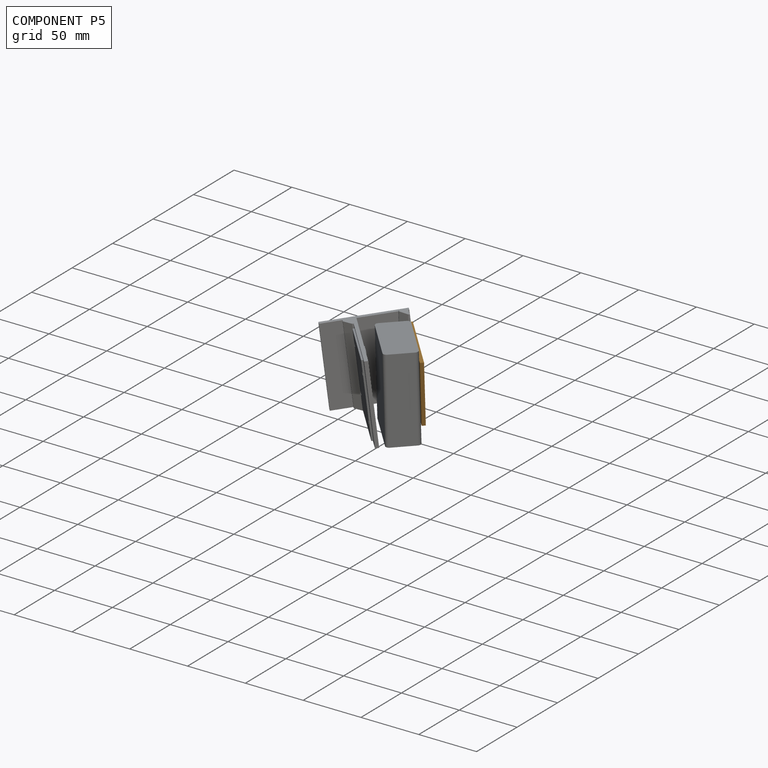
[diagram: component P5 — assembled]
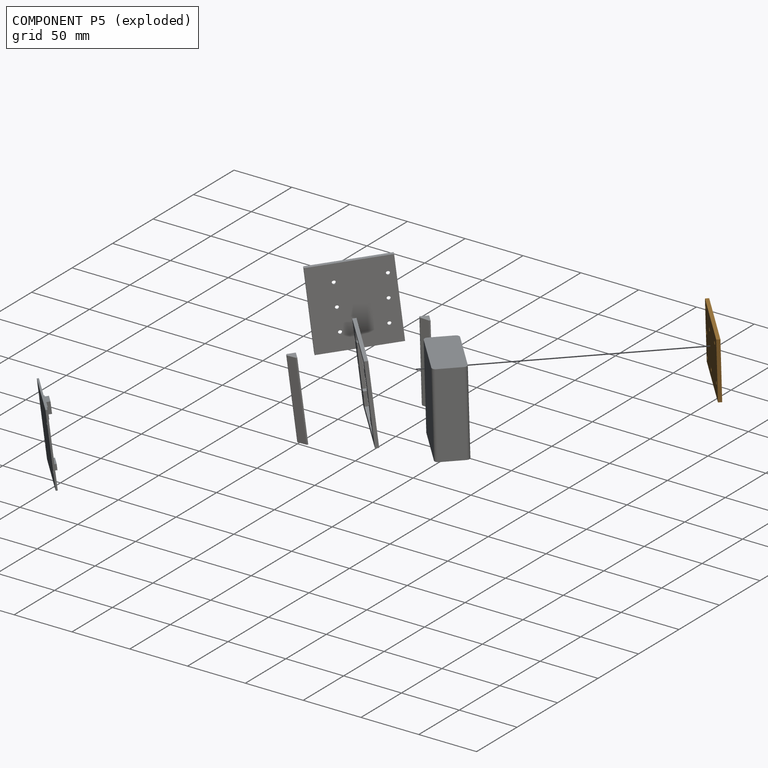
[diagram: component P5 — exploded]
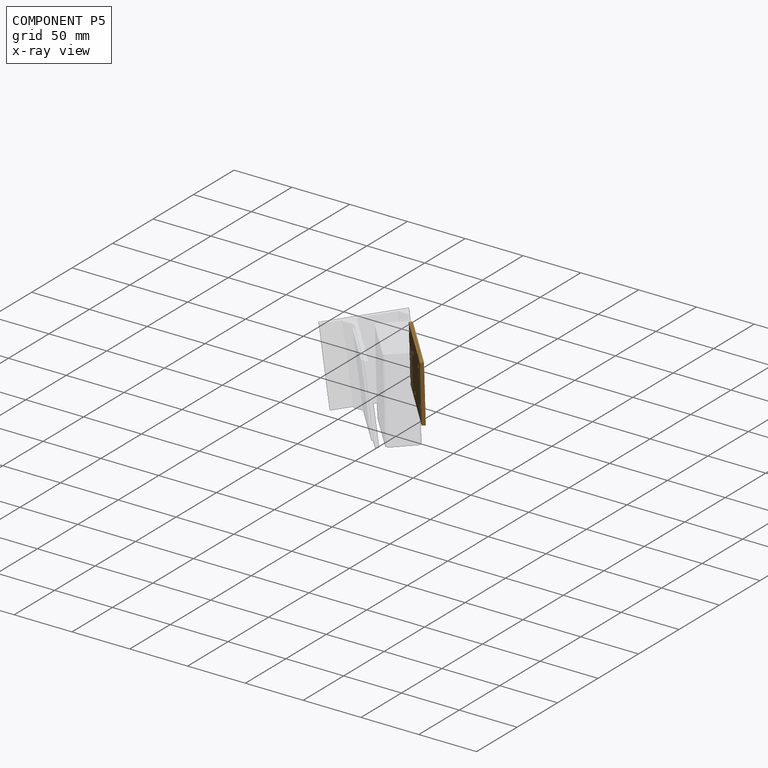
[diagram: component P5 — x-ray view]
COMPONENT P5 — geometry summary (no construction recipe available for this part):
  bounding box: 65.0 x 50.0 x 3.0 mm
  B-rep topology: 1 solid, 13 faces, 66 edges
  volume: 9581 mm^3 (98% of its bounding box)
  symmetry: mirror-symmetric across its z mid-plane
Held by: FASTENED mate "Fastened 6" to P3; FASTENED mate "Fastened 5" to P0.
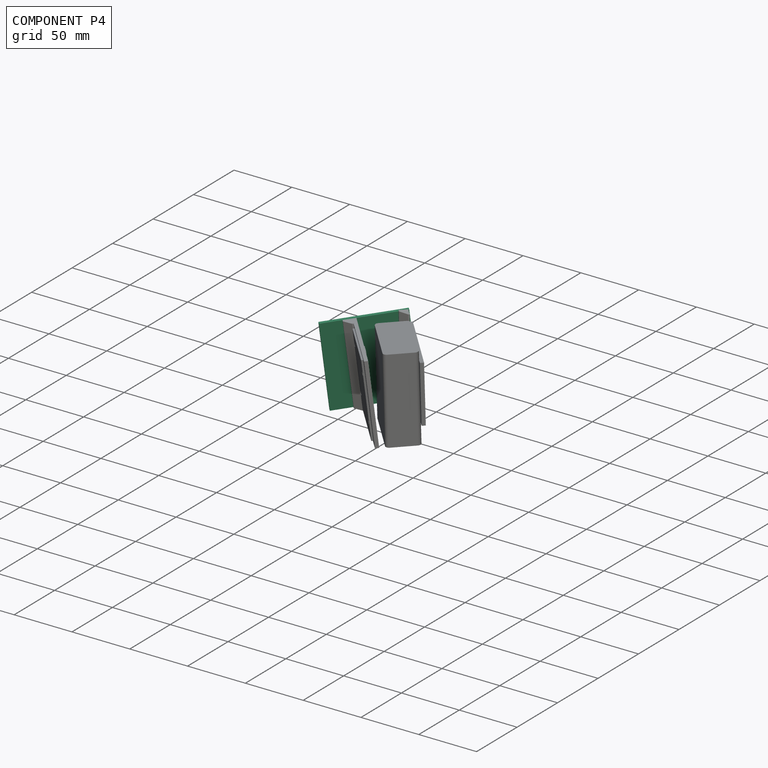
[diagram: component P4 — assembled]
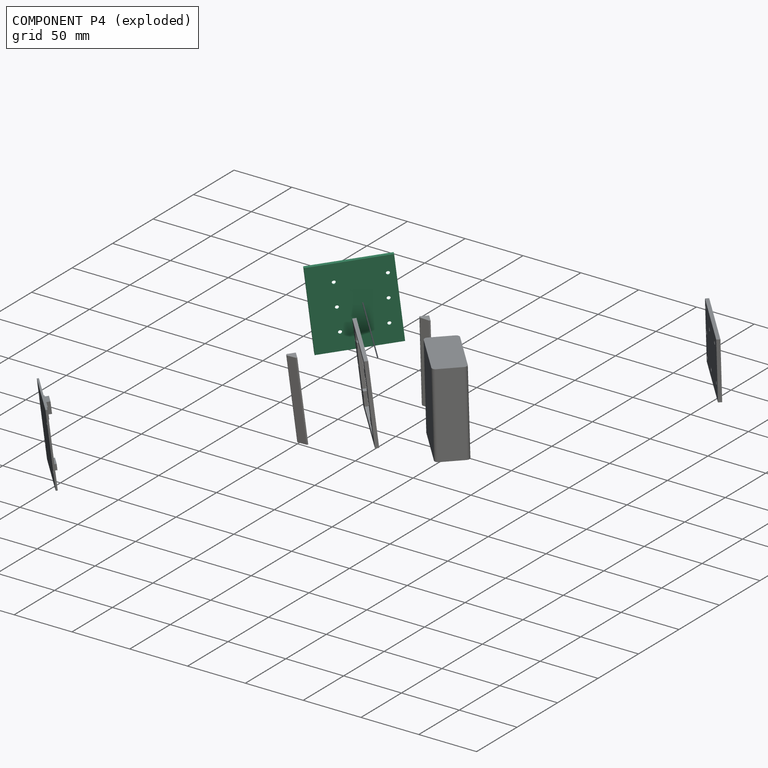
[diagram: component P4 — exploded]
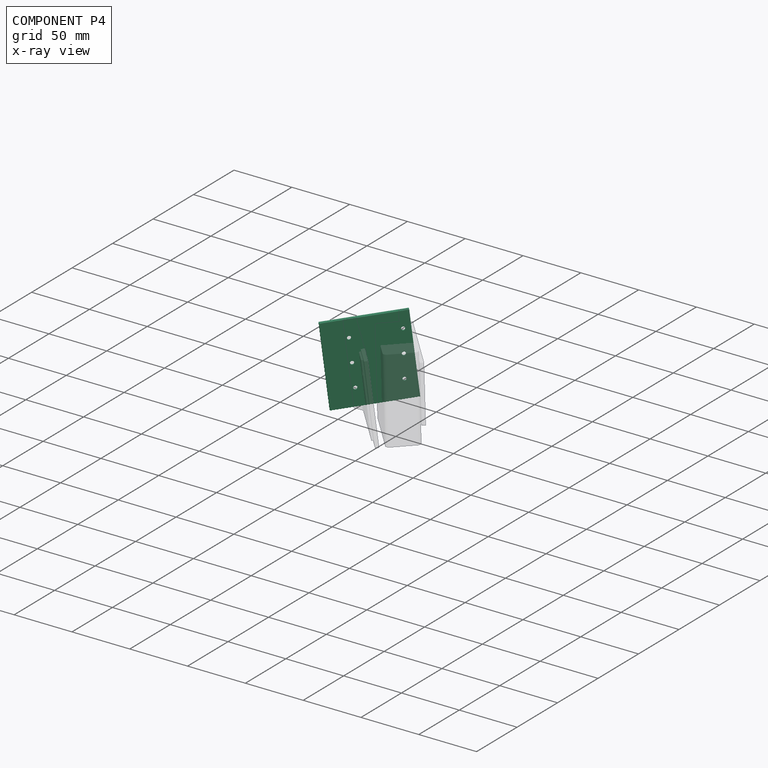
[diagram: component P4 — x-ray view]
COMPONENT P4 — recipe-attached (CADFS 00900889, mesh-verified: the recipe's output STEP matches this component's geometry to below the mesh-comparison resolution (tessellation chordal tolerance ~0.143 mm)).
Held by: FASTENED mate "Fastened 3" to P2.
Construction recipe (FeatureScript — the CAD program that rebuilds this solid; sketch coordinates are in the units given by the * unit suffixes, e.g. mm):

FeatureScript 1511;
import(path : "onshape/std/geometry.fs", version : "1511.0");
import(path : "onshape/std/common.fs", version : "1511.0");
const mm = millimeter;
const VERTEX = EntityType.VERTEX;
const EDGE = EntityType.EDGE;
const FACE = EntityType.FACE;
const BODY = EntityType.BODY;
function v(x, y){return vector(x, y);}
function OD(order){return orderDisambiguation(order);}
function OSD(set){return originalSetDisambiguation(set);}
function TD(topology){return topologyDisambiguation(topology);}
function TDD(query){return trueDependencyDisambiguation(query);}
function sQuery(a, b, c) {return sketchEntityQuery(a, b, c);}

annotation { "Feature Type Name" : "Feature", "Feature Type Description" : "" }
export const myFeature = defineFeature(function(context is Context, id is Id, definition is map)
    precondition{}
    {
        {
            var Q0;
            Q0=qCreatedBy(makeId("Front.planeOp"),FACE);
            var sketch = newSketch(context, id + "F0", { "sketchPlane" : qUnion([Q0])});
            skLineSegment(sketch, "E0.bottom", {"start": v(-26.6, 28.87) * mm, "end": v(38.4, 28.87) * mm});
            skLineSegment(sketch, "E0.top", {"start": v(-26.6, -41.13) * mm, "end": v(38.4, -41.13) * mm});
            skLineSegment(sketch, "E0.left", {"start": v(-26.6, 28.87) * mm, "end": v(-26.6, -41.13) * mm});
            skLineSegment(sketch, "E0.right", {"start": v(38.4, 28.87) * mm, "end": v(38.4, -41.13) * mm});
            skLineSegment(sketch, "E1", {"start": v(-6.6, 28.87) * mm, "end": v(-6.6, 13.87) * mm, "construction": true});
            skLineSegment(sketch, "E2", {"start": v(-6.6, 13.87) * mm, "end": v(-6.6, -6.13) * mm, "construction": true});
            skLineSegment(sketch, "E3", {"start": v(-6.6, -6.13) * mm, "end": v(-6.6, -26.13) * mm, "construction": true});
            skCircle(sketch, "E4", {"center": v(-6.6, 13.87) * mm, "radius": 1.5 * mm});
            skCircle(sketch, "E5", {"center": v(-6.6, -6.13) * mm, "radius": 1.5 * mm});
            skCircle(sketch, "E6", {"center": v(-6.6, -26.13) * mm, "radius": 1.5 * mm});
            skCircle(sketch, "E7", {"center": v(32.4, 14.65) * mm, "radius": 1.5 * mm});
            skCircle(sketch, "E8", {"center": v(28.92, -25.2) * mm, "radius": 1.5 * mm});
            skLineSegment(sketch, "E9", {"start": v(32.4, 14.65) * mm, "end": v(38.4, 14.65) * mm, "construction": true});
            skLineSegment(sketch, "E10", {"start": v(32.4, 14.65) * mm, "end": v(32.4, 28.87) * mm, "construction": true});
            skLineSegment(sketch, "E11", {"start": v(32.4, 14.65) * mm, "end": v(30.66, -5.28) * mm, "construction": true});
            skLineSegment(sketch, "E12", {"start": v(28.92, -25.2) * mm, "end": v(30.66, -5.28) * mm, "construction": true});
            skCircle(sketch, "E13", {"center": v(30.66, -5.28) * mm, "radius": 1.5 * mm});
            skSolve(sketch);
        }
        {
            var Q0;
            Q0 = qSketchRegion(id + "F0", true);
            extrude(context, id + "F1", {"entities" : qUnion([Q0]), "depth" : 3 * mm, "offsetDistance" : 25 * mm});
        }
        {
            var Q0;
            Q0=makeQuery(id+"F1.opExtrude","CAP_EDGE",EDGE,{"disambiguationData":[OSD([sQuery(id+"F0.wireOp",EDGE,"E7")])],"isStart":true});
            var Q1;
            Q1=makeQuery(id+"F1.opExtrude","CAP_EDGE",EDGE,{"disambiguationData":[OSD([sQuery(id+"F0.wireOp",EDGE,"E4")])],"isStart":true});
            var Q2;
            Q2=makeQuery(id+"F1.opExtrude","CAP_EDGE",EDGE,{"disambiguationData":[OSD([sQuery(id+"F0.wireOp",EDGE,"E13")])],"isStart":true});
            var Q3;
            Q3=makeQuery(id+"F1.opExtrude","CAP_EDGE",EDGE,{"disambiguationData":[OSD([sQuery(id+"F0.wireOp",EDGE,"E5")])],"isStart":true});
            var Q4;
            Q4=makeQuery(id+"F1.opExtrude","CAP_EDGE",EDGE,{"disambiguationData":[OSD([sQuery(id+"F0.wireOp",EDGE,"E6")])],"isStart":true});
            var Q5;
            Q5=makeQuery(id+"F1.opExtrude","CAP_EDGE",EDGE,{"disambiguationData":[OSD([sQuery(id+"F0.wireOp",EDGE,"E8")])],"isStart":true});
            chamfer(context, id + "F2", {"entities" : qUnion([Q0, Q1, Q2, Q3, Q4, Q5]), "width" : 2 * mm, "tangentPropagation" : true});
        }
    });
PROVENANCE & LICENSES
Assembly (occurrences, transforms, mates, per-part STEP geometry): AutoMate dataset, Zenodo record 7776208, CC0.
Construction recipes: CADFS (HuggingFace VladPyatov/CADFS, CC-BY-4.0, layered over the ABC dataset), FeatureScript reconstruction programs keyed by ABC model id.
Join: ABC meta listings map ABC model id -> Onshape documentId; within a shared document, parts are matched by geometric signature (bounding-box dims + volume at 0.1% relative tolerance, exact B-rep face/solid counts).
Verification: 6 of this assembly's 7 components carry a recipe attachment, and every attachment is mesh-verified: the CADFS STEP and the AutoMate member STEP were compared as meshes in their shared local frame (symmetric sampled-point-to-mesh distance); worst across the 6 attachments: below the mesh-comparison resolution (tessellation chordal tolerance ~0.146 mm) on a 98 mm part.
Renders: orthographic iso camera (az 35 / el 25); the floor grid conveys scale (grid pitch printed in each image; no ruler). In the exploded view each component is displaced by its stored offset vector: the offsets alone carry the explosion direction (mate normal/axis signs are not orientation cues and do not encode it), and separation distances are assigned per mate-chain, not proportionally to assembly-order depth.
